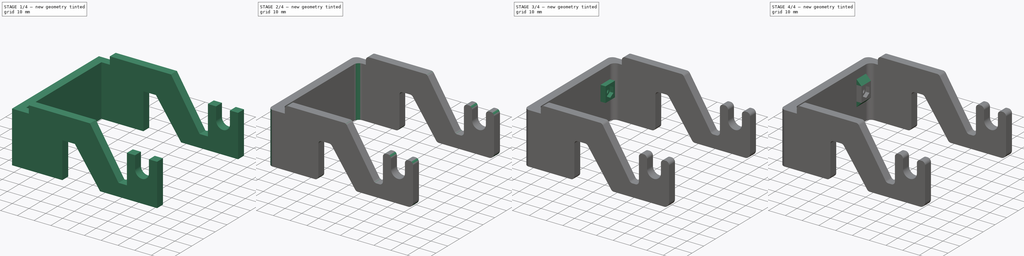
[diagram: build sequence overview — one tinted view per stage of 4, left to right]
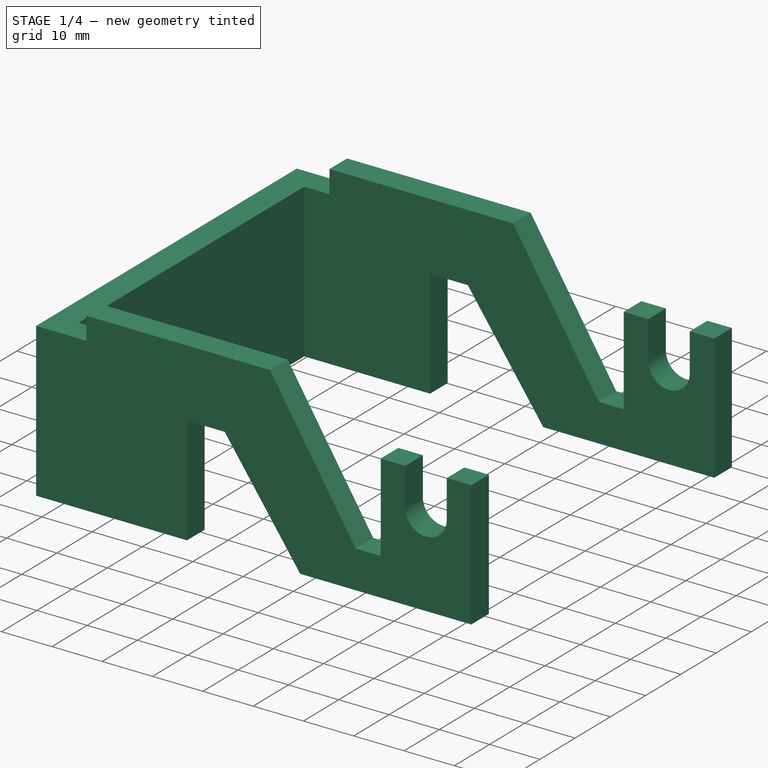
[diagram: stage 1 of 4 — iso view after this stage's code; geometry added in this stage tinted green]
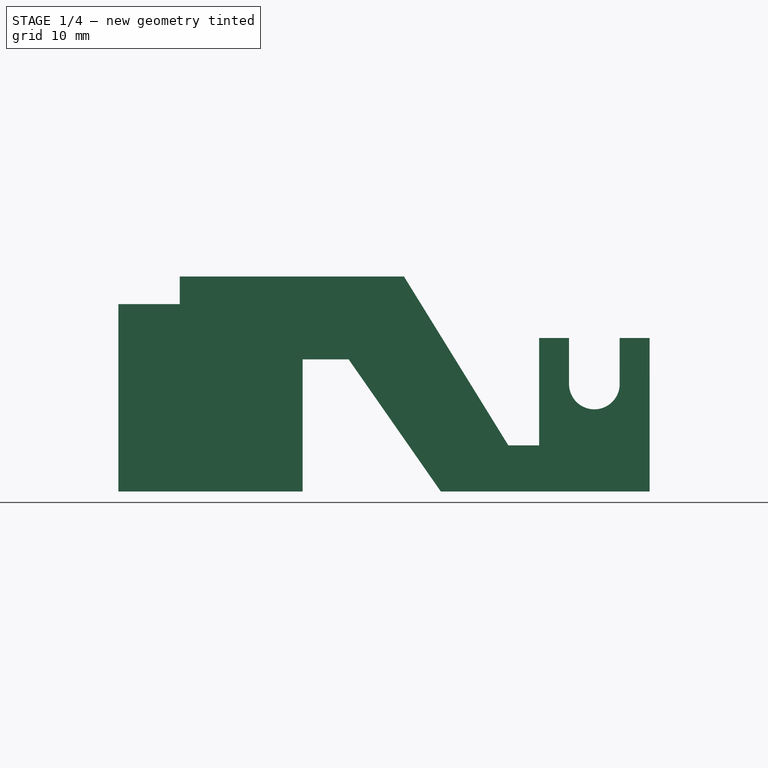
[diagram: stage 1 of 4 — front view after this stage's code; geometry added in this stage tinted green]
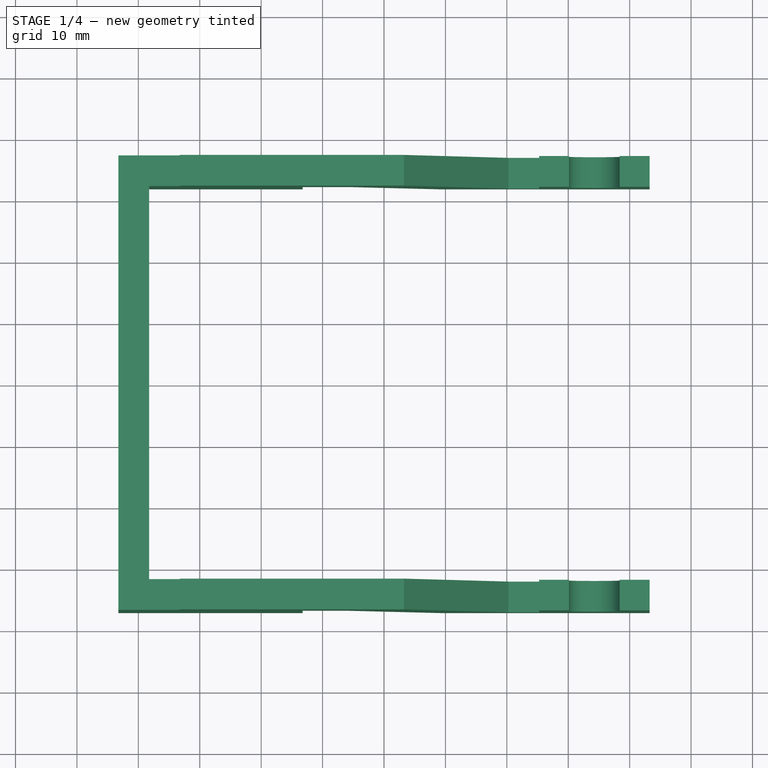
[diagram: stage 1 of 4 — top view after this stage's code; geometry added in this stage tinted green]
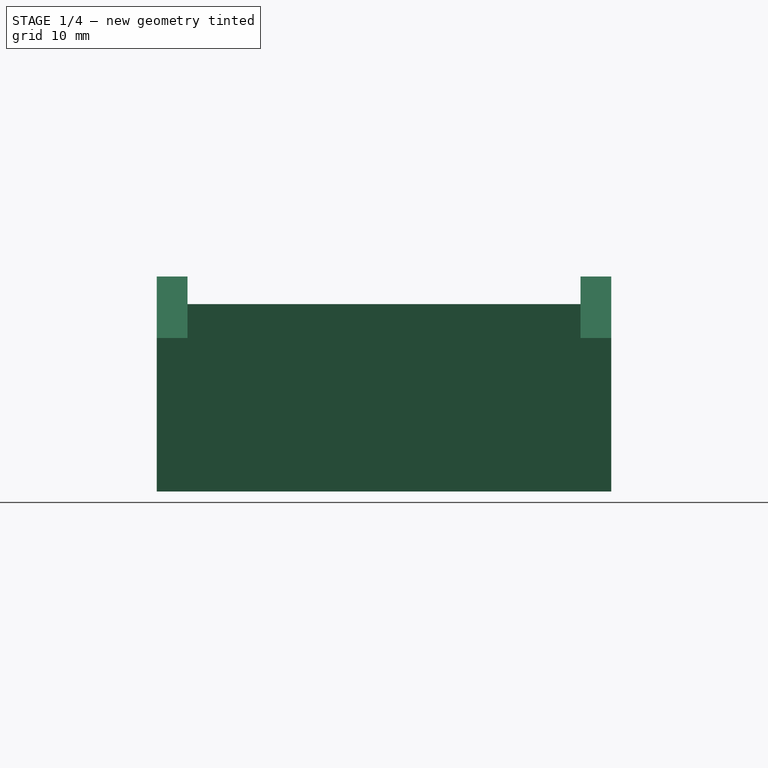
[diagram: stage 1 of 4 — right view after this stage's code; geometry added in this stage tinted green]
FCSTD DOCUMENT  (FreeCAD 0.16R6218 (Git))
Label: InmovilizadorCarro
License: All rights reserved
LicenseURL: http://en.wikipedia.org/wiki/All_rights_reserved
objects: Sketcher::SketchObject×4, PartDesign::Pad×2, PartDesign::Pocket×2, PartDesign::Fillet×2, Part::Feature×2, Part::Cut×2, PartDesign::Chamfer×1
note: 19 computed .brp shape members not serialized (recipe doc carries the construction recipe); baked Part::Feature solids carry a one-line shape summary decoded from their .brp

FEATURE [Sketcher::SketchObject] Sketch  label="BaseSketch"
  sketch-geometry (8):
    g0: LineSegment StartX=-43.25 StartY=37 StartZ=0 EndX=43.25 EndY=37 EndZ=0
    g1: LineSegment StartX=43.25 StartY=-37 StartZ=0 EndX=-43.25 EndY=-37 EndZ=0
    g2: LineSegment StartX=-43.25 StartY=-37 StartZ=0 EndX=-43.25 EndY=37 EndZ=0
    g3: LineSegment StartX=43.25 StartY=37 StartZ=0 EndX=43.25 EndY=32 EndZ=0
    g4: LineSegment StartX=-38.25 StartY=32 StartZ=0 EndX=43.25 EndY=32 EndZ=0
    g5: LineSegment StartX=-38.25 StartY=32 StartZ=0 EndX=-38.25 EndY=-32 EndZ=0
    g6: LineSegment StartX=-38.25 StartY=-32 StartZ=0 EndX=43.25 EndY=-32 EndZ=0
    g7: LineSegment StartX=43.25 StartY=-32 StartZ=0 EndX=43.25 EndY=-37 EndZ=0
  constraints (23):
    c: Coincident(g1,g2)
    c: Coincident(g2,g0)
    c: Horizontal(g0)
    c: Horizontal(g1)
    c: Vertical(g2)
    c: Symmetric(g0,g1,g-1)
    c: Symmetric(g0,g0,g-2)
    c: Distance(g0) = 86.5
    c: DistanceY(g0,g1) = -74
    c: Vertical(g3)
    c: Coincident(g4,g3)
    c: Horizontal(g4)
    c: Coincident(g5,g4)
    c: Vertical(g5)
    c: Coincident(g6,g5)
    c: Horizontal(g6)
    c: Coincident(g7,g6)
    c: Vertical(g7)
    c: Equal(g3,g7)
    c: Distance(g3) = 5
    c: Coincident(g3,g0)
    c: Coincident(g7,g1)
    c: DistanceX(g5,g1) = -5
FEATURE [PartDesign::Pad] Pad  label="ExtrudedBase"
  Length = 35
  Length2 = 100
  Sketch = -> Sketch
  Type = 0
FEATURE [Sketcher::SketchObject] Sketch001  label="HolesSketch"
  ExternalGeometry = -> [Pad]
  Placement = pos=(0,37,0) rot=(0,0.707107,0.707107;3.14159rad)
  Support = -> Pad [Face6]
  sketch-geometry (18):
    g0: ArcOfCircle CenterX=-34.25 CenterY=17.5 CenterZ=0 NormalX=0 NormalY=0 NormalZ=1 Radius=4.125 StartAngle=3.14159 EndAngle=6.28319
    g1: LineSegment StartX=-38.375 StartY=17.5 StartZ=0 EndX=-38.375 EndY=25 EndZ=0
    g2: LineSegment StartX=-30.125 StartY=17.5 StartZ=0 EndX=-30.125 EndY=25 EndZ=0
    g3: LineSegment StartX=-38.375 StartY=25 StartZ=0 EndX=-43.25 EndY=25 EndZ=0
    g4: LineSegment StartX=-43.25 StartY=25 StartZ=0 EndX=-43.25 EndY=35 EndZ=0
    g5: LineSegment StartX=-43.25 StartY=35 StartZ=0 EndX=-3.25 EndY=35 EndZ=0
    g6: LineSegment StartX=-30.125 StartY=25 StartZ=0 EndX=-25.25 EndY=25 EndZ=0
    g7: LineSegment StartX=-25.25 StartY=25 StartZ=0 EndX=-25.25 EndY=7.5 EndZ=0
    g8: LineSegment StartX=-25.25 StartY=7.5 StartZ=0 EndX=-20.25 EndY=7.5 EndZ=0
    g9: LineSegment StartX=-20.25 StartY=7.5 StartZ=0 EndX=-3.25 EndY=35 EndZ=0
    g10: LineSegment StartX=43.25 StartY=30.5 StartZ=0 EndX=33.25 EndY=30.5 EndZ=0
    g11: LineSegment StartX=33.25 StartY=30.5 StartZ=0 EndX=33.25 EndY=35 EndZ=0
    g12: LineSegment StartX=33.25 StartY=35 StartZ=0 EndX=43.25 EndY=35 EndZ=0
    g13: LineSegment StartX=43.25 StartY=35 StartZ=0 EndX=43.25 EndY=30.5 EndZ=0
    g14: LineSegment StartX=5.75 StartY=21.5 StartZ=0 EndX=13.25 EndY=21.5 EndZ=0
    g15: LineSegment StartX=13.25 StartY=21.5 StartZ=0 EndX=13.25 EndY=0 EndZ=0
    g16: LineSegment StartX=5.75 StartY=21.5 StartZ=0 EndX=-9.25 EndY=0 EndZ=0
    g17: LineSegment StartX=-9.25 StartY=0 StartZ=0 EndX=13.25 EndY=0 EndZ=0
  constraints (55):
    c: Radius(g0) = 4.125
    c: DistanceY(g0,g-3) = -17.5
    c: DistanceX(g-4,g0) = 9
    c: Vertical(g1)
    c: Vertical(g2)
    c: Equal(g1,g2)
    c: Horizontal(g3)
    c: Coincident(g3,g1)
    c: PointOnObject(g3,g-4)
    c: Vertical(g4)
    c: Horizontal(g5)
    c: Coincident(g5,g4)
    c: Coincident(g4,g3)
    c: Coincident(g4,g-4)
    c: Distance(g5) = 40
    c: Horizontal(g6)
    c: Vertical(g7)
    c: Coincident(g6,g7)
    c: Coincident(g6,g2)
    c: Equal(g6,g3)
    c: Distance(g7) = 17.5
    c: Horizontal(g8)
    c: Distance(g8) = 5
    c: Coincident(g8,g7)
    c: Coincident(g9,g5)
    c: Coincident(g9,g8)
    c: Horizontal(g10)
    c: Distance(g10) = 10
    c: Vertical(g11)
    c: Distance(g11) = 4.5
    c: Coincident(g11,g10)
    c: PointOnObject(g10,g-3)
    c: PointOnObject(g11,g-5)
    c: Coincident(g12,g11)
    c: Coincident(g12,g-5)
    c: Coincident(g13,g12)
    c: Coincident(g13,g10)
    c: Horizontal(g14)
    c: DistanceX(g14,g-3) = 30
    c: Vertical(g15)
    c: Distance(g15) = 21.5
    c: Distance(g14) = 7.5
    c: PointOnObject(g15,g-1)
    c: Coincident(g15,g14)
    c: Coincident(g16,g14)
    c: PointOnObject(g16,g-1)
    c: DistanceX(g16,g-4) = -34
    c: Horizontal(g17)
    c: Coincident(g17,g15)
    c: Coincident(g17,g16)
    c: Coincident(g0,g1)
    c: Coincident(g0,g2)
    c: DistanceY(g0,g-3) = -17.5
    c: DistanceY(g0,g-3) = -17.5
    c: DistanceY(g3,g-4) = -25
FEATURE [PartDesign::Pocket] Pocket  label="Holes"
  Length = 5
  Sketch = -> Sketch001
  Type = 1
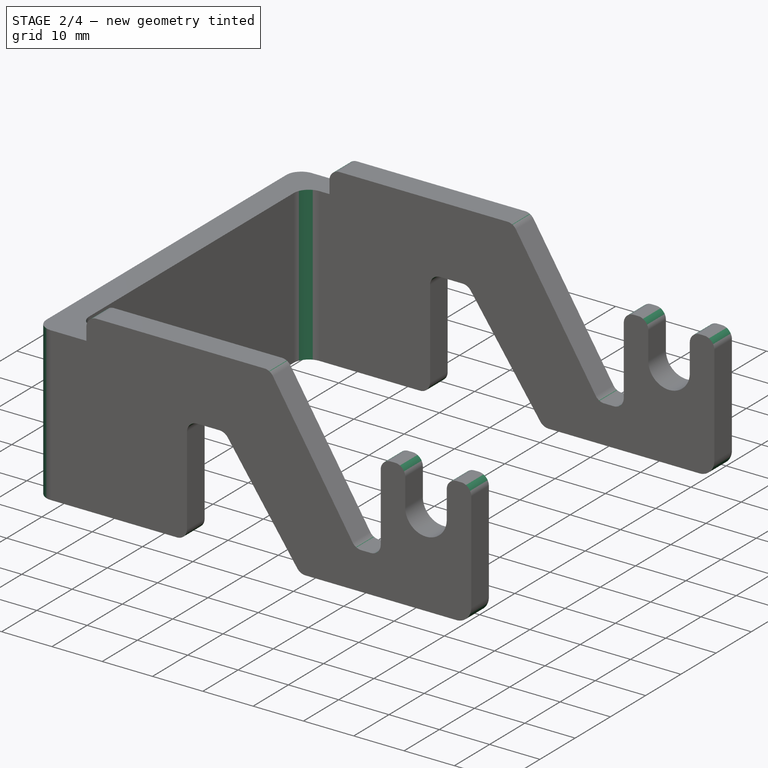
[diagram: stage 2 of 4 — iso view after this stage's code; geometry added in this stage tinted green]
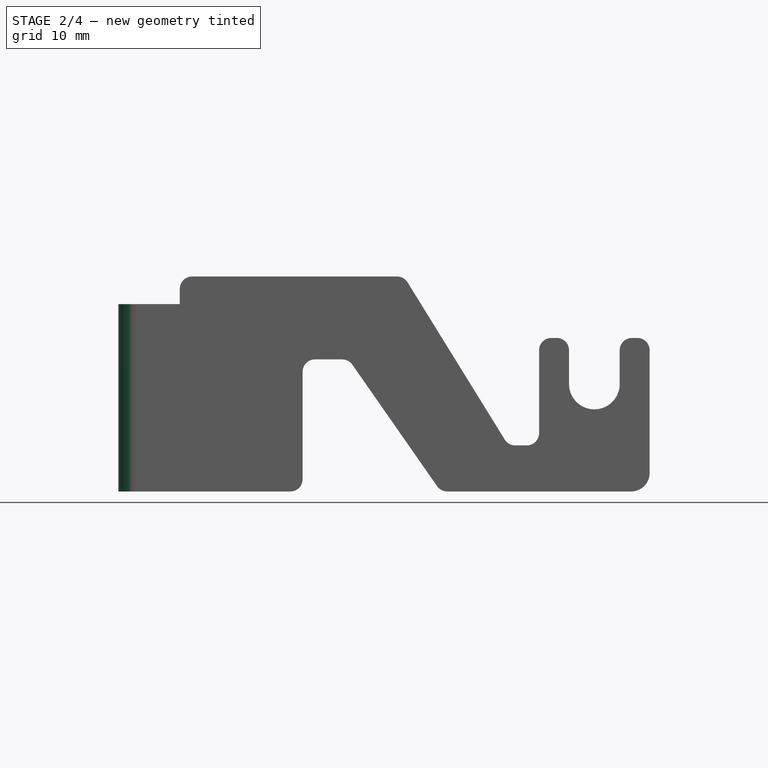
[diagram: stage 2 of 4 — front view after this stage's code; geometry added in this stage tinted green]
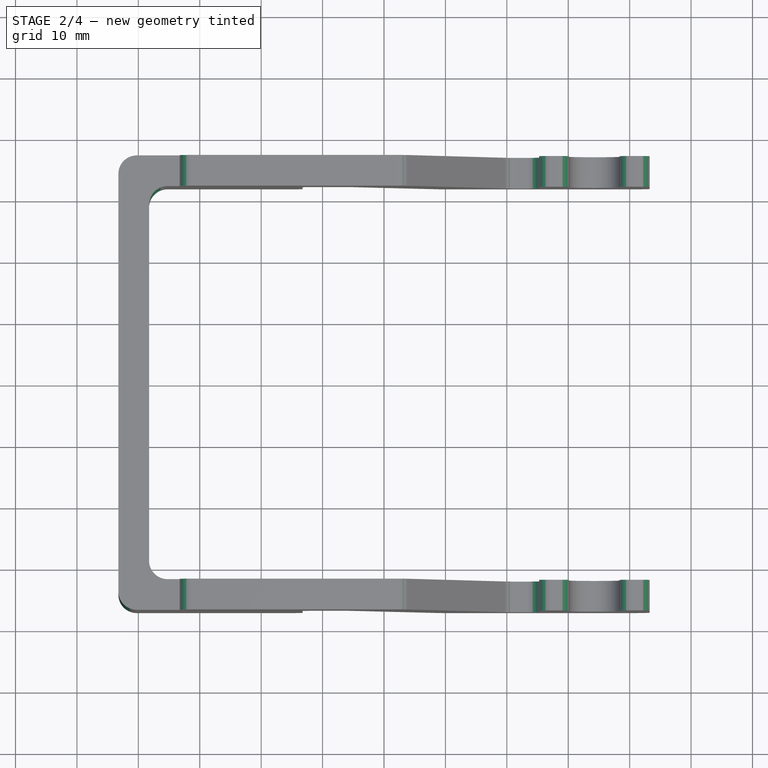
[diagram: stage 2 of 4 — top view after this stage's code; geometry added in this stage tinted green]
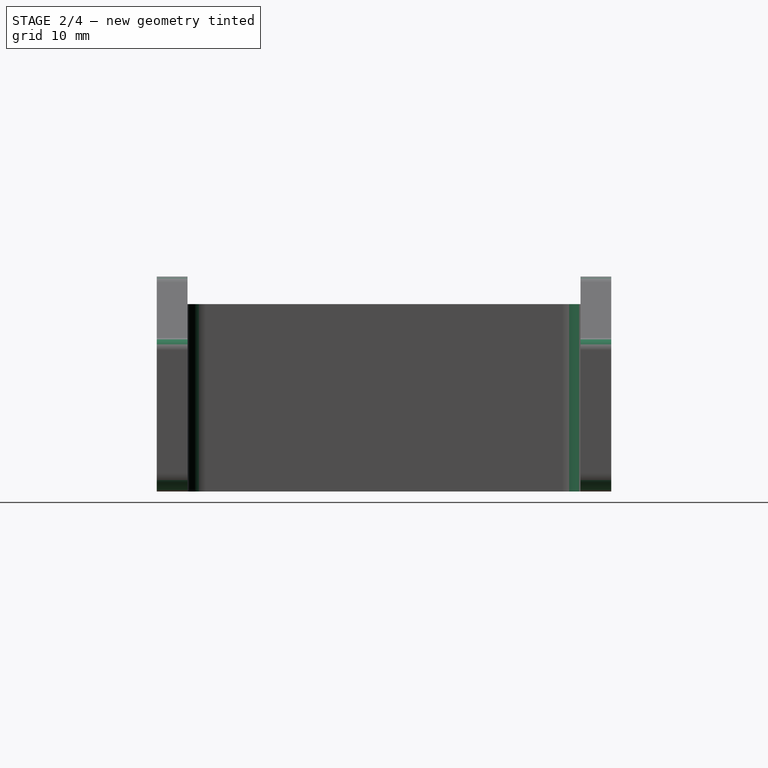
[diagram: stage 2 of 4 — right view after this stage's code; geometry added in this stage tinted green]
FEATURE [PartDesign::Fillet] Fillet  label="2mmFillet"
  Base = -> Pocket [Edge100,Edge101,Edge104,Edge105,Edge86,Edge87,Edge90,Edge91,Edge94,Edge95,Edge96,Edge108,Edge93,Edge107,Edge92,Edge106,Edge98,Edge84,Edge83,Edge97,Edge6,Edge10,Edge50,Edge82]
  Radius = 2
FEATURE [PartDesign::Fillet] Fillet001  label="3mmFillet"
  Base = -> Fillet [Edge142,Edge167,Edge40,Edge42,Edge10,Edge99]
  Radius = 3
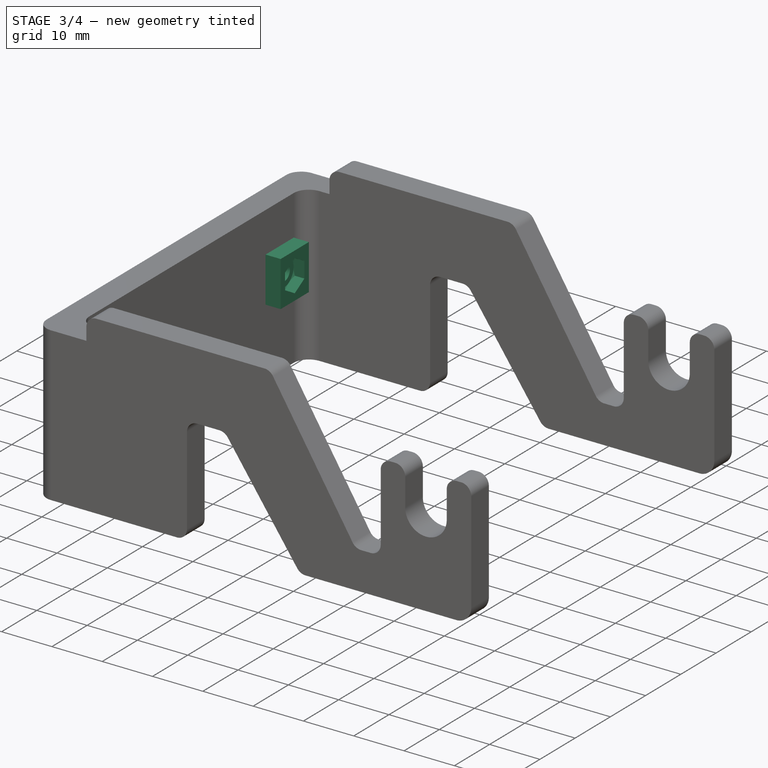
[diagram: stage 3 of 4 — iso view after this stage's code; geometry added in this stage tinted green]
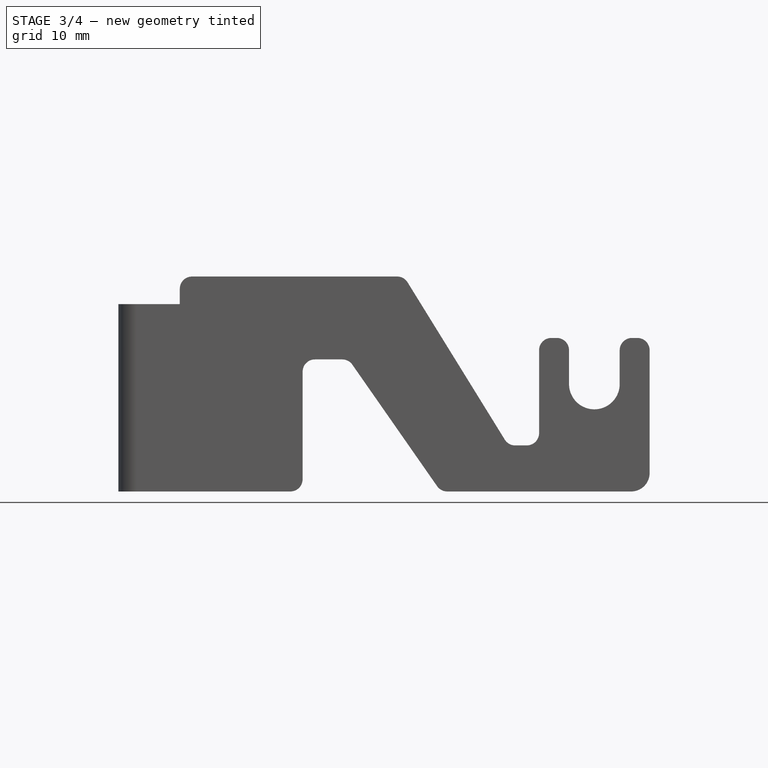
[diagram: stage 3 of 4 — front view after this stage's code; geometry added in this stage tinted green]
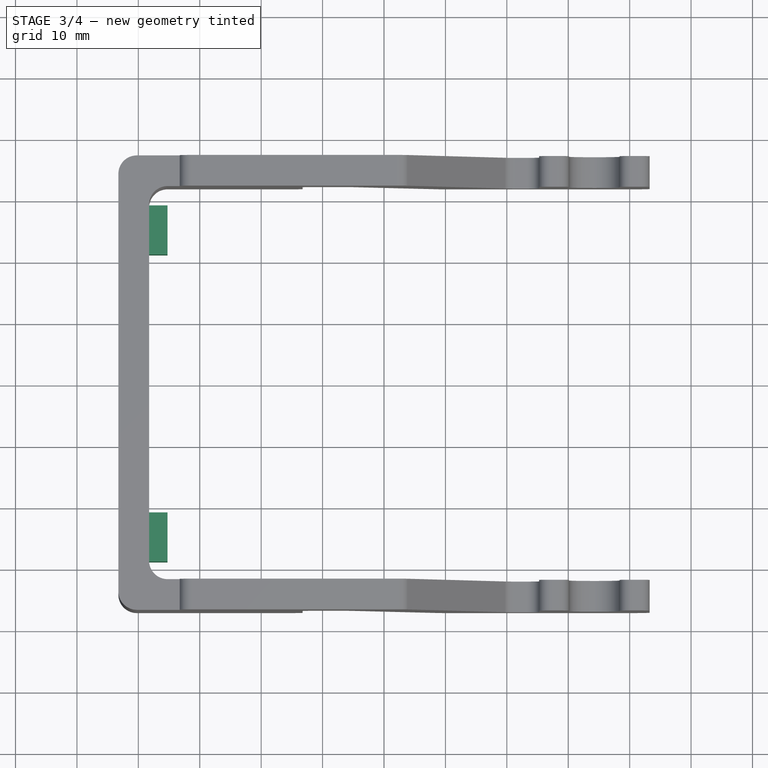
[diagram: stage 3 of 4 — top view after this stage's code; geometry added in this stage tinted green]
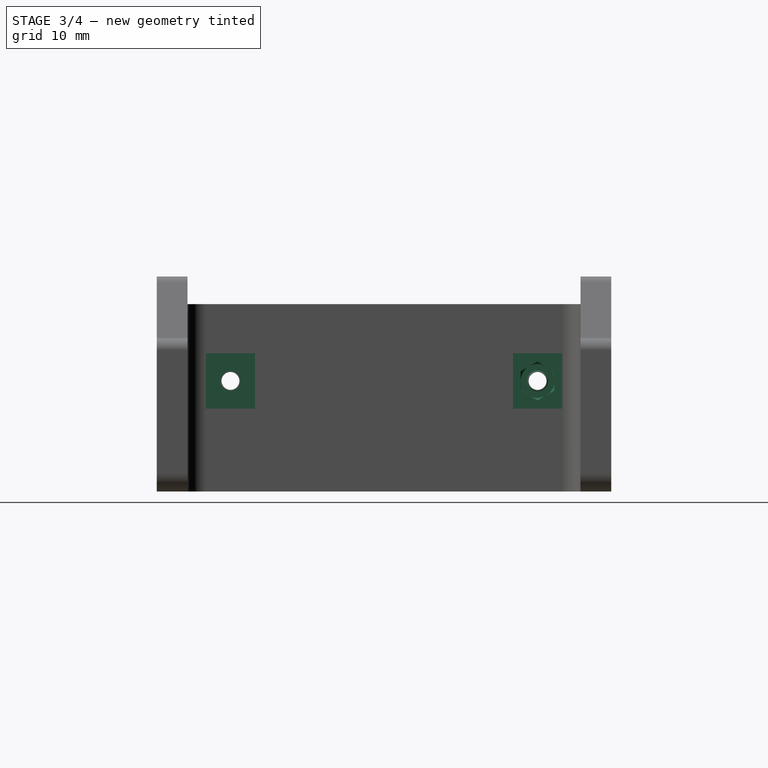
[diagram: stage 3 of 4 — right view after this stage's code; geometry added in this stage tinted green]
FEATURE [Sketcher::SketchObject] Sketch002  label="ScrewHolesSketch"
  ExternalGeometry = -> [Fillet001]
  Placement = pos=(-43.25,0,0) rot=(0.57735,-0.57735,-0.57735;2.0944rad)
  Support = -> Fillet001 [Face10]
  sketch-geometry (2):
    g0: Circle CenterX=-25 CenterY=18 CenterZ=0 NormalX=0 NormalY=0 NormalZ=1 Radius=1.45
    g1: Circle CenterX=25 CenterY=18 CenterZ=0 NormalX=0 NormalY=0 NormalZ=1 Radius=1.45
  constraints (5):
    c: Equal(g1,g0)
    c: Symmetric(g1,g0,g-2)
    c: Radius(g1) = 1.45
    c: DistanceX(g-1,g0) = -25
    c: DistanceY(g0,g-3) = -16
FEATURE [PartDesign::Pocket] Pocket001  label="ScrewHoles"
  Length = 5
  Sketch = -> Sketch002
  Type = 0
FEATURE [Part::Feature] Chamfer001  label="M3-Nut-001"
  Placement = pos=(-35,-25,18) rot=(0,0,1;1.5708rad)
  shape: bbox 2.4 x 6.35 x 6.35 mm, 29 faces (baked)
FEATURE [Part::Feature] Chamfer002  label="M3-Nut-002"
  Placement = pos=(-35,25,18) rot=(0,0,1;1.5708rad)
  shape: bbox 2.4 x 6.35 x 6.35 mm, 29 faces (baked)
FEATURE [Sketcher::SketchObject] Sketch003  label="EmbeddedNutsSketch"
  ExternalGeometry = -> [Pocket001]
  Placement = pos=(-38.25,0,0) rot=(0.57735,0.57735,0.57735;2.0944rad)
  Support = -> Pocket001 [Face5]
  sketch-geometry (10):
    g0: LineSegment StartX=-29 StartY=22.5 StartZ=0 EndX=-21 EndY=22.5 EndZ=0
    g1: LineSegment StartX=-21 StartY=22.5 StartZ=0 EndX=-21 EndY=13.5 EndZ=0
    g2: LineSegment StartX=-21 StartY=13.5 StartZ=0 EndX=-29 EndY=13.5 EndZ=0
    g3: LineSegment StartX=-29 StartY=13.5 StartZ=0 EndX=-29 EndY=22.5 EndZ=0
    g4: LineSegment StartX=21 StartY=22.5 StartZ=0 EndX=29 EndY=22.5 EndZ=0
    g5: LineSegment StartX=29 StartY=22.5 StartZ=0 EndX=29 EndY=13.5 EndZ=0
    g6: LineSegment StartX=29 StartY=13.5 StartZ=0 EndX=21 EndY=13.5 EndZ=0
    g7: LineSegment StartX=21 StartY=13.5 StartZ=0 EndX=21 EndY=22.5 EndZ=0
    g8: Circle CenterX=-25 CenterY=18 CenterZ=0 NormalX=0 NormalY=0 NormalZ=1 Radius=1.6
    g9: Circle CenterX=25 CenterY=18 CenterZ=0 NormalX=0 NormalY=0 NormalZ=1 Radius=1.6
  constraints (30):
    c: Coincident(g0,g1)
    c: Coincident(g1,g2)
    c: Coincident(g2,g3)
    c: Coincident(g3,g0)
    c: Horizontal(g0)
    c: Horizontal(g2)
    c: Vertical(g1)
    c: Vertical(g3)
    c: PointOnObject(g0,g-4)
    c: Coincident(g4,g5)
    c: Coincident(g5,g6)
    c: Coincident(g6,g7)
    c: Coincident(g7,g4)
    c: Horizontal(g4)
    c: Horizontal(g6)
    c: Vertical(g5)
    c: Vertical(g7)
    c: PointOnObject(g4,g-3)
    c: Equal(g0,g4)
    c: Equal(g1,g7)
    c: DistanceY(g0,g-4) = 8
    c: DistanceY(g4,g-3) = 8
    c: DistanceX(g0) = 8
    c: Distance(g1) = 9
    c: Radius(g8) = 1.6
    c: DistanceX(g8,g0) = 4
    c: DistanceY(g8,g0) = 4.5
    c: Equal(g9,g8)
    c: DistanceX(g9,g4) = -4
    c: DistanceY(g9,g4) = 4.5
FEATURE [PartDesign::Pad] Pad001  label="EmbeddedNuts"
  Length = 3
  Length2 = 100
  Sketch = -> Sketch003
  Type = 0
FEATURE [Part::Cut] Cut
  Base = -> Pad001
  Tool = -> Chamfer002
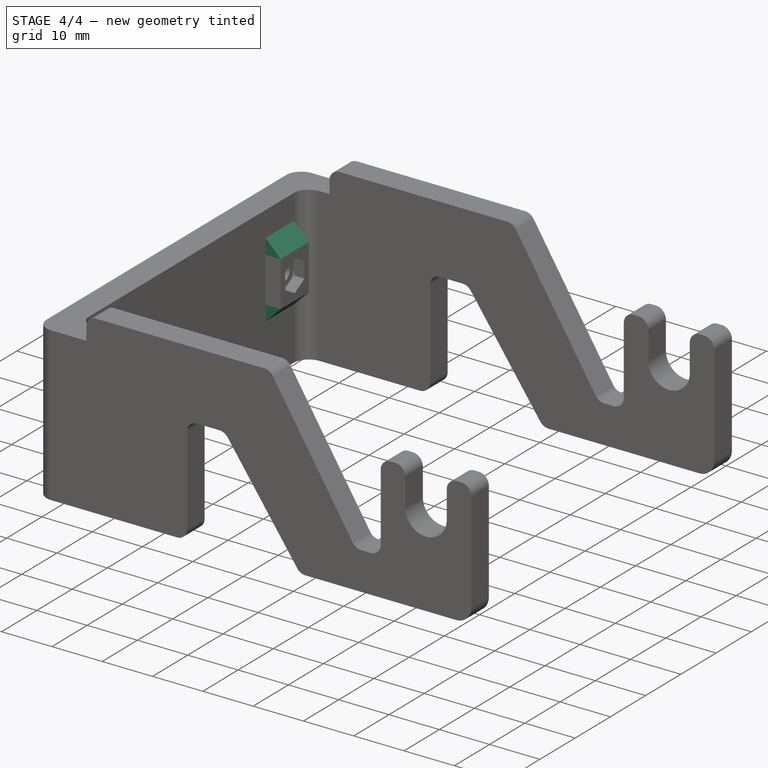
[diagram: stage 4 of 4 — iso view after this stage's code; geometry added in this stage tinted green]
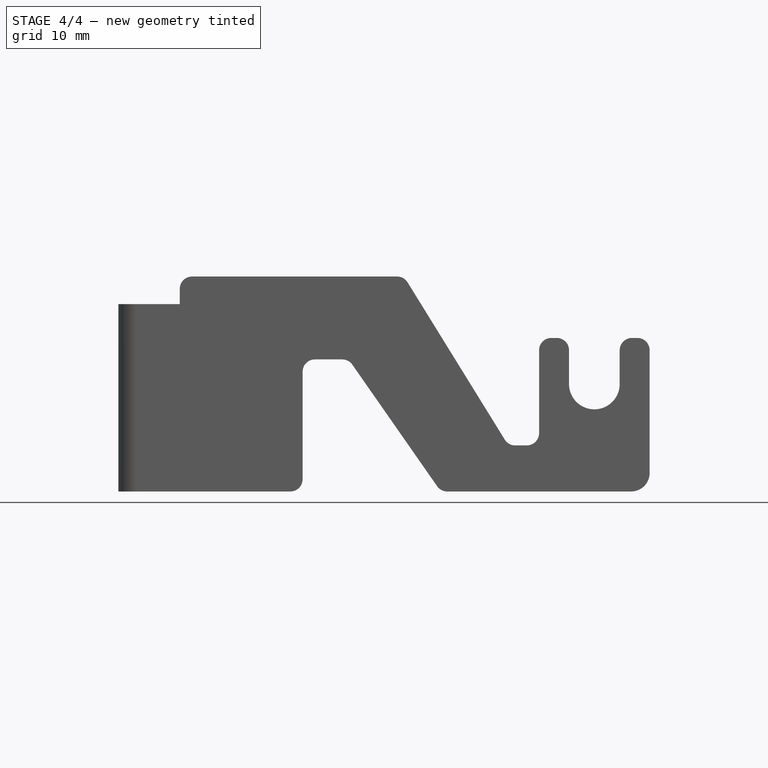
[diagram: stage 4 of 4 — front view after this stage's code; geometry added in this stage tinted green]
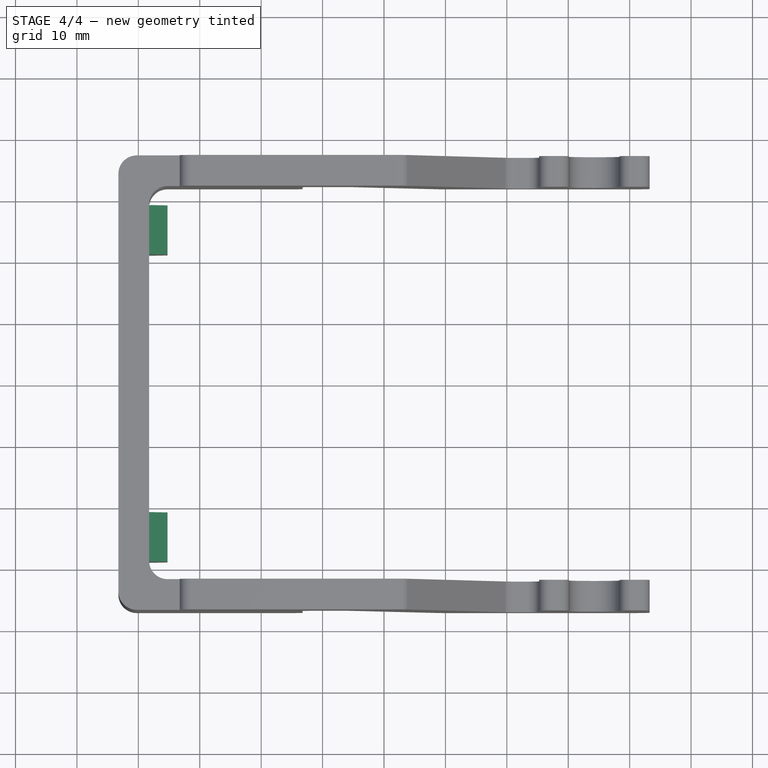
[diagram: stage 4 of 4 — top view after this stage's code; geometry added in this stage tinted green]
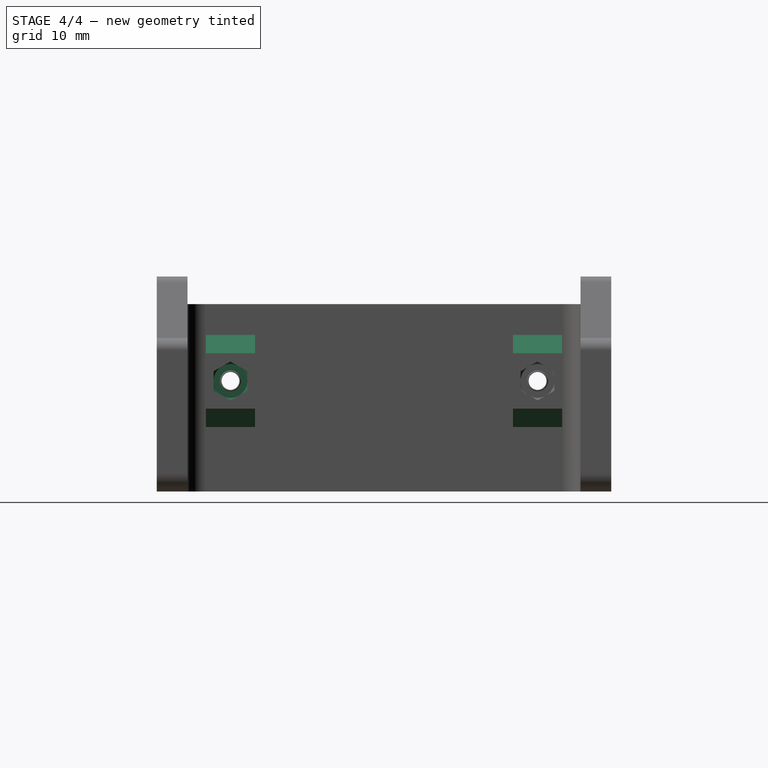
[diagram: stage 4 of 4 — right view after this stage's code; geometry added in this stage tinted green]
FEATURE [Part::Cut] Cut001  label="EmbeddedNuts-Pockets"
  Base = -> Cut
  Tool = -> Chamfer001
FEATURE [PartDesign::Chamfer] Chamfer  label="45degreeChamfer"
  Base = -> Cut001 [Edge50,Edge57,Edge52,Edge55]
  Size = 3
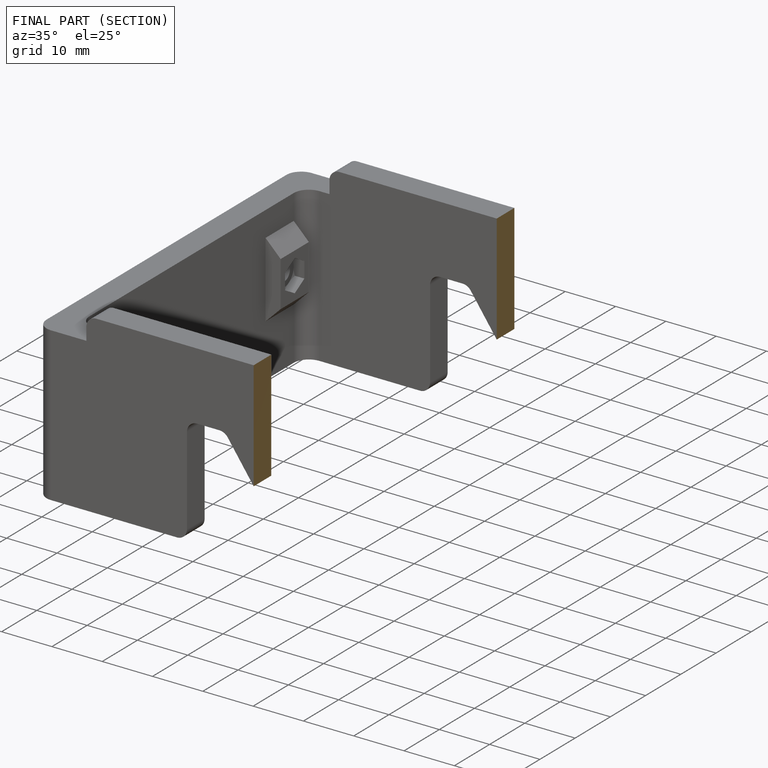
[diagram: finished part — half-section view (interior)]
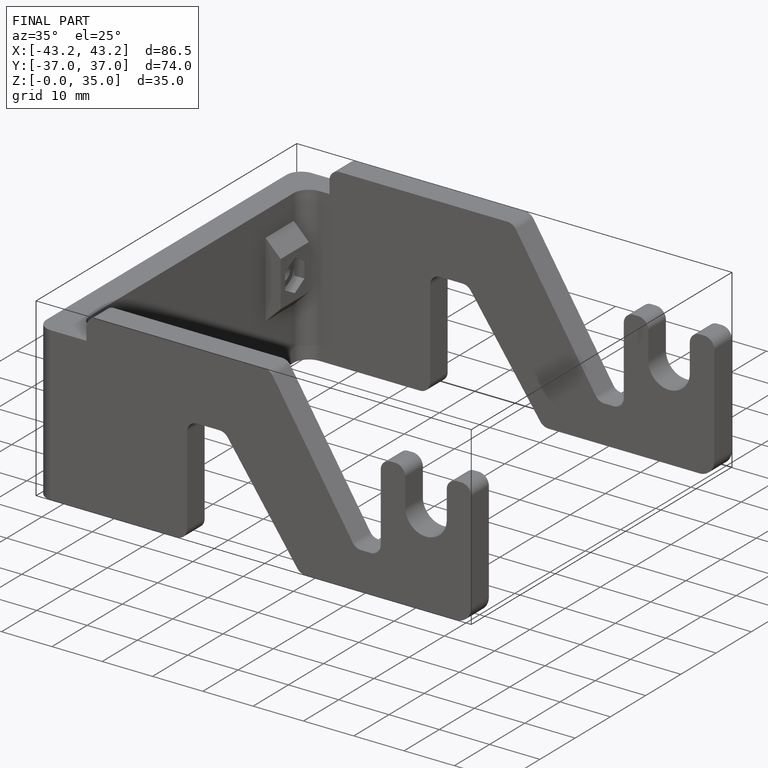
[diagram: finished part — iso view with bounding-box wireframe]
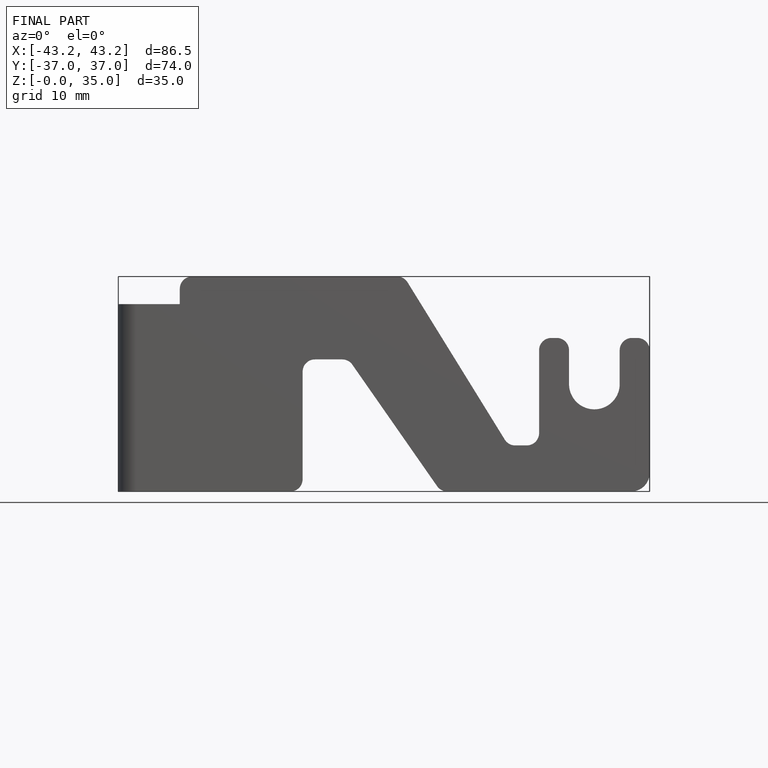
[diagram: finished part — front view with bounding-box wireframe]
